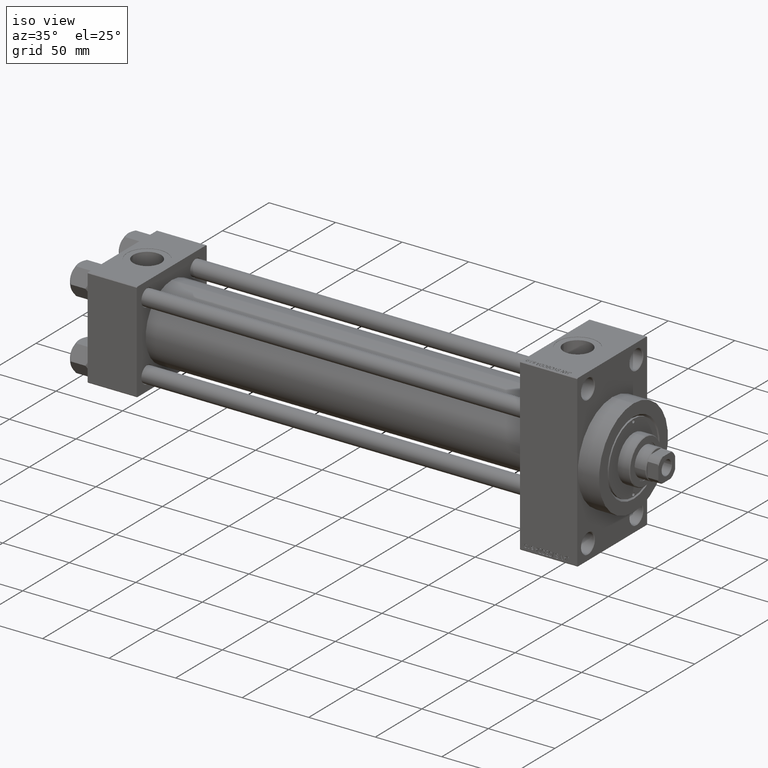
[diagram: clean part render]
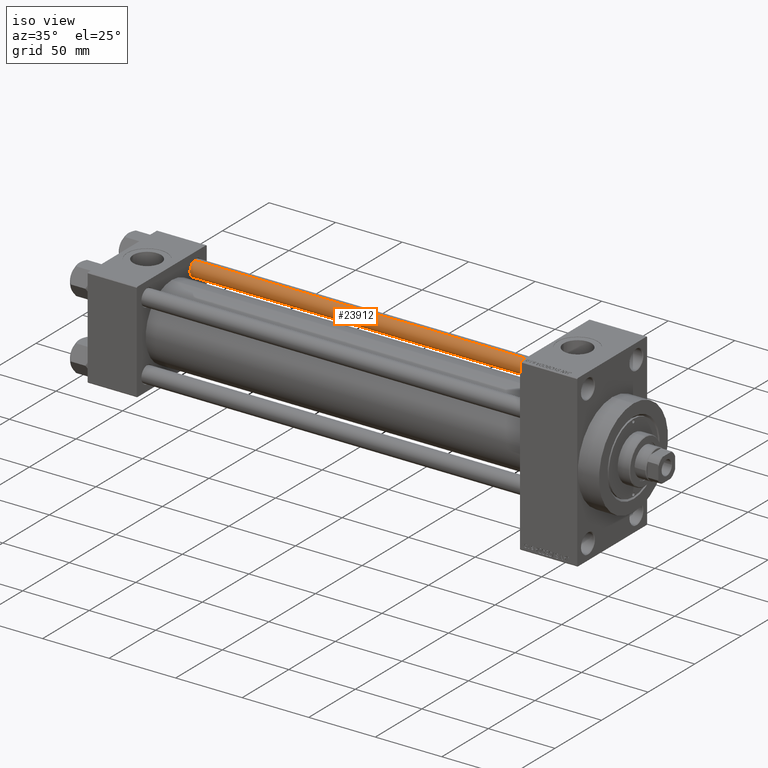
[diagram: same view with one face highlighted and labeled with its STEP entity id]
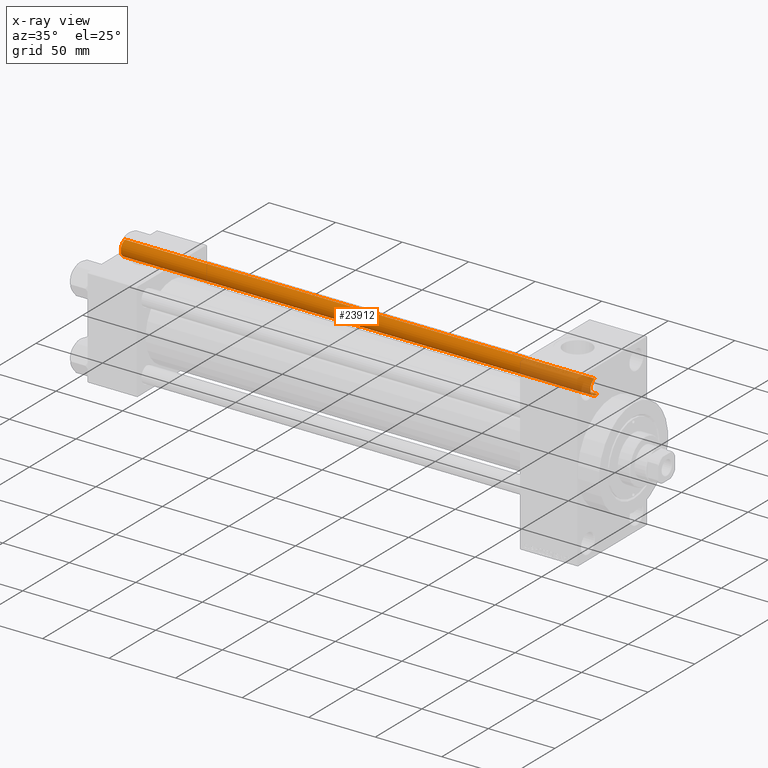
[diagram: x-ray of the same camera — body ghosted, the highlighted face saturated]
A machine part, iso view. The second image highlights one B-rep face of the part: STEP entity #23912.
The next image is the same camera in x-ray: the body ghosted, the highlighted face saturated — about 15% of this face is hidden behind the body in this view.
In plain terms, the highlighted cylindrical surface (edge-blend (fillet) strip) has radius 6 mm, axis along (-1, -0, 0).
Its self-contained STEP definition (entity closure, byte-faithful):
#3206 = ORIENTED_EDGE ( 'NONE', *, *, #11783, .T. ) ;
#4577 = DIRECTION ( 'NONE',  ( -0.000000000000000000, -0.000000000000000000, -1.000000000000000000 ) ) ;
#5674 = CARTESIAN_POINT ( 'NONE',  ( 6.000000000000000888, 7.347880794884120722E-16, 353.5000000000000000 ) ) ;
#8412 = CYLINDRICAL_SURFACE ( 'NONE', #25824, 6.000000000000000888 ) ;
#11196 = CARTESIAN_POINT ( 'NONE',  ( -6.000000000000000888, 0.000000000000000000, 354.0000000000000000 ) ) ;
#11433 = LINE ( 'NONE', #11196, #36122 ) ;
#11783 = EDGE_CURVE ( 'NONE', #40125, #18652, #11433, .T. ) ;
#13607 = VERTEX_POINT ( 'NONE', #26617 ) ;
#14061 = CARTESIAN_POINT ( 'NONE',  ( -6.000000000000000888, 0.000000000000000000, 353.5000000000000000 ) ) ;
#14253 = CIRCLE ( 'NONE', #47196, 6.000000000000000888 ) ;
#18212 = VERTEX_POINT ( 'NONE', #5674 ) ;
#18652 = VERTEX_POINT ( 'NONE', #19918 ) ;
#19723 = EDGE_CURVE ( 'NONE', #18652, #13607, #28774, .T. ) ;
#19918 = CARTESIAN_POINT ( 'NONE',  ( -6.000000000000000888, 0.000000000000000000, 0.5000000000000559552 ) ) ;
#20222 = DIRECTION ( 'NONE',  ( 1.000000000000000000, 0.000000000000000000, 0.000000000000000000 ) ) ;
#21685 = EDGE_CURVE ( 'NONE', #18212, #40125, #14253, .T. ) ;
#22309 = CARTESIAN_POINT ( 'NONE',  ( 6.000000000000000888, 7.347880794884120722E-16, 354.0000000000000000 ) ) ;
#23449 = ORIENTED_EDGE ( 'NONE', *, *, #19723, .T. ) ;
#23912 = ADVANCED_FACE ( 'NONE', ( #43897 ), #8412, .T. ) ;
#25717 = DIRECTION ( 'NONE',  ( -0.000000000000000000, -0.000000000000000000, 1.000000000000000000 ) ) ;
#25824 = AXIS2_PLACEMENT_3D ( 'NONE', #44372, #4577, #40785 ) ;
#26617 = CARTESIAN_POINT ( 'NONE',  ( 6.000000000000000888, 7.347880794884120722E-16, 0.5000000000000559552 ) ) ;
#26640 = ORIENTED_EDGE ( 'NONE', *, *, #40747, .F. ) ;
#28774 = CIRCLE ( 'NONE', #31880, 6.000000000000000888 ) ;
#28800 = LINE ( 'NONE', #22309, #39191 ) ;
#29268 = DIRECTION ( 'NONE',  ( -0.000000000000000000, -0.000000000000000000, -1.000000000000000000 ) ) ;
#30553 = CARTESIAN_POINT ( 'NONE',  ( 0.000000000000000000, 0.000000000000000000, 353.5000000000000000 ) ) ;
#31025 = DIRECTION ( 'NONE',  ( 0.000000000000000000, 0.000000000000000000, -1.000000000000000000 ) ) ;
#31880 = AXIS2_PLACEMENT_3D ( 'NONE', #43483, #25717, #32469 ) ;
#32469 = DIRECTION ( 'NONE',  ( 1.000000000000000000, 0.000000000000000000, 0.000000000000000000 ) ) ;
#36122 = VECTOR ( 'NONE', #37581, 1000.000000000000000 ) ;
#37150 = ORIENTED_EDGE ( 'NONE', *, *, #21685, .T. ) ;
#37581 = DIRECTION ( 'NONE',  ( -0.000000000000000000, -0.000000000000000000, -1.000000000000000000 ) ) ;
#39191 = VECTOR ( 'NONE', #29268, 1000.000000000000000 ) ;
#40125 = VERTEX_POINT ( 'NONE', #14061 ) ;
#40747 = EDGE_CURVE ( 'NONE', #18212, #13607, #28800, .T. ) ;
#40785 = DIRECTION ( 'NONE',  ( -1.000000000000000000, 0.000000000000000000, 0.000000000000000000 ) ) ;
#43483 = CARTESIAN_POINT ( 'NONE',  ( 0.000000000000000000, 0.000000000000000000, 0.5000000000000559552 ) ) ;
#43897 = FACE_OUTER_BOUND ( 'NONE', #44538, .T. ) ;
#44372 = CARTESIAN_POINT ( 'NONE',  ( 0.000000000000000000, 0.000000000000000000, 354.0000000000000000 ) ) ;
#44538 = EDGE_LOOP ( 'NONE', ( #26640, #37150, #3206, #23449 ) ) ;
#47196 = AXIS2_PLACEMENT_3D ( 'NONE', #30553, #31025, #20222 ) ;